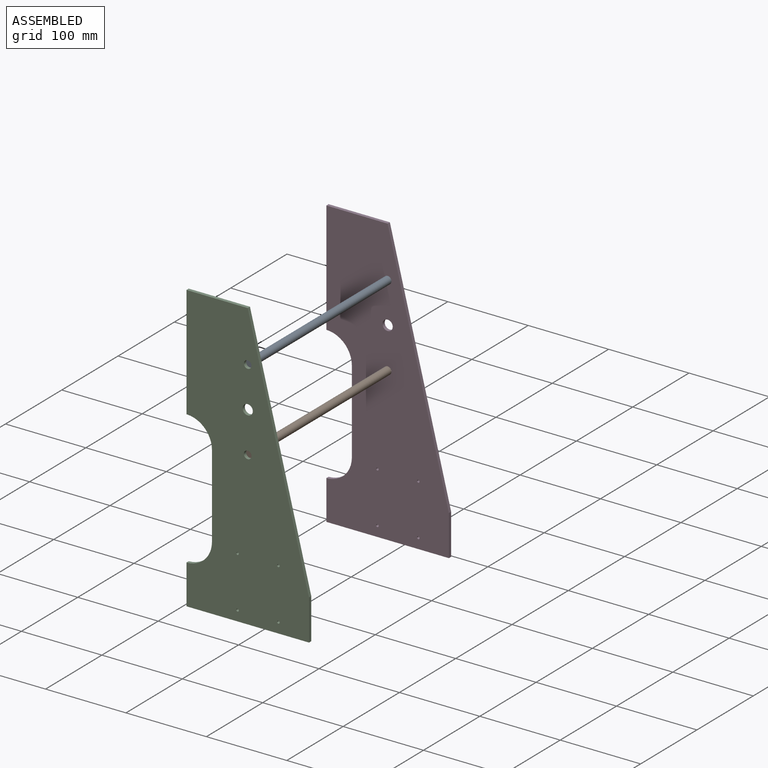
[diagram: assembled view]
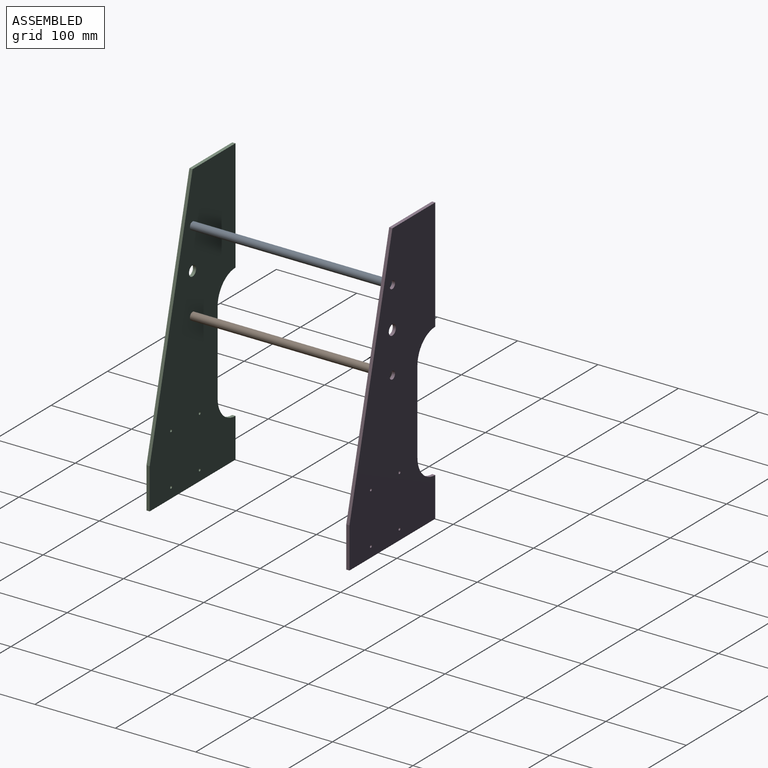
[diagram: assembled view, second angle]
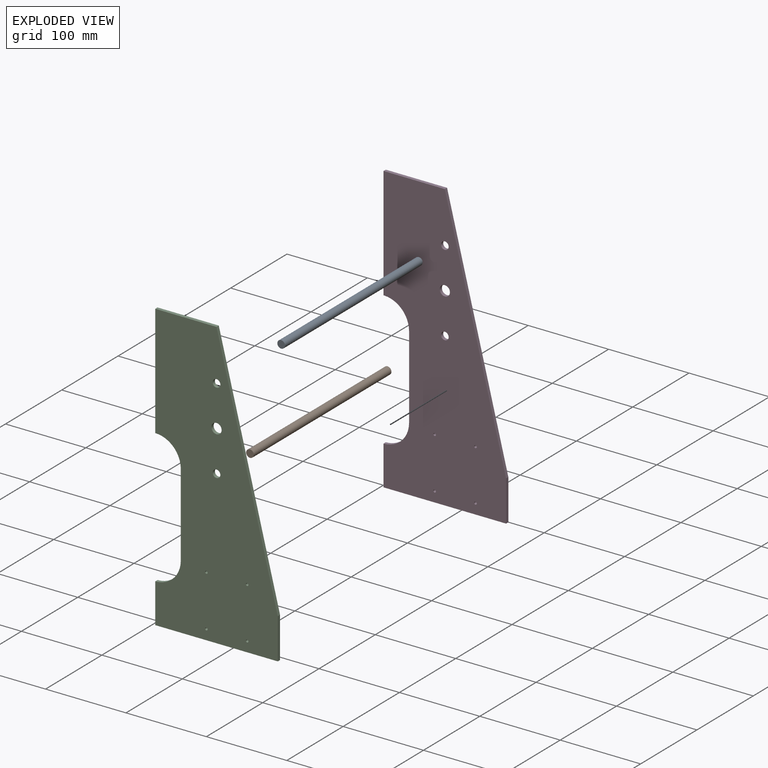
[diagram: exploded view]
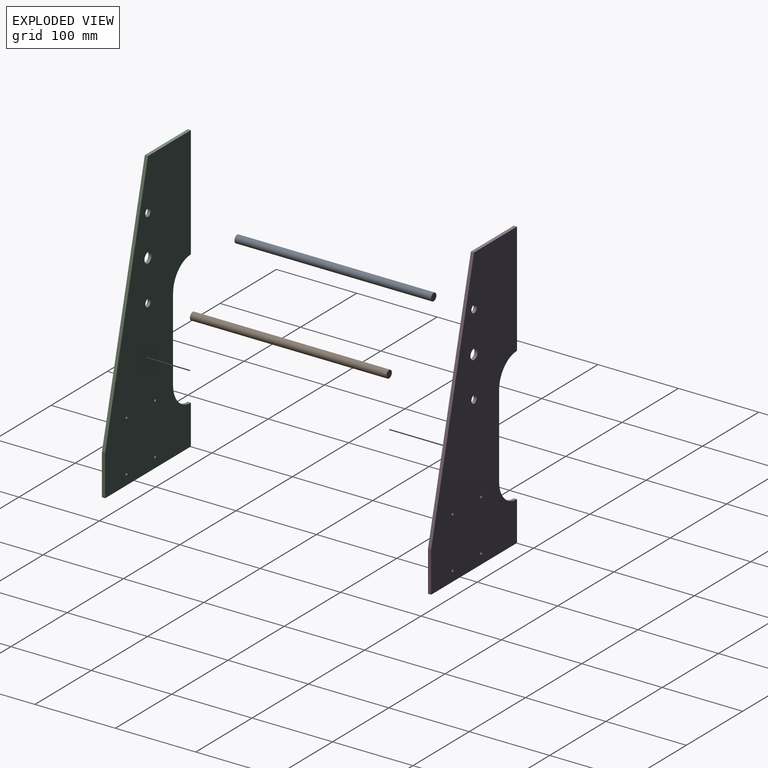
[diagram: exploded view, second angle]
ASSEMBLY  parts=4 mates=3
PART A: 3 faces, bbox 9.5x9.5x244.5 mm
  f0: cylinder r=4.76mm len=244.48mm, axis (0,0,-1), area 7315.6mm2, adj f1,f2
  f1: plane 9.53x9.53mm, normal (0,0,1), area 71.3mm2, adj f0
  f2: plane 9.53x9.53mm, normal (0,0,-1), area 71.3mm2, adj f0
PART B: 3 faces, bbox 9.5x9.5x244.5 mm
  f0: cylinder r=4.76mm len=244.48mm, axis (0,0,-1), area 7315.6mm2, adj f1,f2
  f1: plane 9.53x9.53mm, normal (0,0,1), area 71.3mm2, adj f0
  f2: plane 9.53x9.53mm, normal (0,0,-1), area 71.3mm2, adj f0
PART C: 18 faces, bbox 152.4x4x355.6 mm
  f0: plane 304.8x76.2mm, normal (0.97,0,0.24), area 1256.7mm2, adj f1,f8,f9,f10
  f1: plane 76.2x4mm, normal (0,0,1), area 304.8mm2, adj f0,f2,f9,f10
  f2: plane 139.7x4mm, normal (-1,0,0), area 558.8mm2, adj f1,f3,f9,f10
  f3: cylinder r=31.75mm len=31.75mm, axis (0,-1,0), area 199.5mm2, adj f2,f4,f9,f10
  f4: plane 103.19x4mm, normal (-1,0,0), area 412.7mm2, adj f3,f5,f9,f10
  f5: cylinder r=31.75mm len=31.75mm, axis (0,-1,0), area 199.5mm2, adj f4,f6,f9,f10
  f6: plane 49.21x4mm, normal (-1,0,0), area 196.9mm2, adj f5,f7,f9,f10
  f7: plane 152.4x4mm, normal (0,0,-1), area 609.6mm2, adj f6,f8,f9,f10
  f8: plane 50.8x4mm, normal (1,0,0), area 203.2mm2, adj f0,f7,f9,f10
  f9: plane 355.6x152.4mm, normal (0,1,0), area 37420mm2, adj f0,f1,f2,f3,f4,f5,f6,f7
  f10: plane 355.6x152.4mm, normal (0,-1,0), area 37420mm2, adj f0,f1,f2,f3,f4,f5,f6,f7
  f11: cylinder r=1.59mm len=4mm, axis (0,-1,0), area 39.9mm2, adj f9,f10
  f12: cylinder r=1.59mm len=4mm, axis (0,-1,0), area 39.9mm2, adj f9,f10
  f13: cylinder r=1.59mm len=4mm, axis (0,-1,0), area 39.9mm2, adj f9,f10
  f14: cylinder r=1.59mm len=4mm, axis (0,-1,0), area 39.9mm2, adj f9,f10
  f15: cylinder r=4.76mm len=9.53mm, axis (0,-1,0), area 119.7mm2, adj f9,f10
  f16: cylinder r=4.76mm len=9.53mm, axis (0,-1,0), area 119.7mm2, adj f9,f10
  f17: cylinder r=6.35mm len=12.7mm, axis (0,-1,0), area 159.6mm2, adj f9,f10
PART D: 18 faces, bbox 152.4x4x355.6 mm
  f0: plane 304.8x76.2mm, normal (0.97,0,0.24), area 1256.7mm2, adj f1,f8,f9,f10
  f1: plane 76.2x4mm, normal (0,0,1), area 304.8mm2, adj f0,f2,f9,f10
  f2: plane 139.7x4mm, normal (-1,0,0), area 558.8mm2, adj f1,f3,f9,f10
  f3: cylinder r=31.75mm len=31.75mm, axis (0,-1,0), area 199.5mm2, adj f2,f4,f9,f10
  f4: plane 103.19x4mm, normal (-1,0,0), area 412.7mm2, adj f3,f5,f9,f10
  f5: cylinder r=31.75mm len=31.75mm, axis (0,-1,0), area 199.5mm2, adj f4,f6,f9,f10
  f6: plane 49.21x4mm, normal (-1,0,0), area 196.9mm2, adj f5,f7,f9,f10
  f7: plane 152.4x4mm, normal (0,0,-1), area 609.6mm2, adj f6,f8,f9,f10
  f8: plane 50.8x4mm, normal (1,0,0), area 203.2mm2, adj f0,f7,f9,f10
  f9: plane 355.6x152.4mm, normal (0,1,0), area 37420mm2, adj f0,f1,f2,f3,f4,f5,f6,f7
  f10: plane 355.6x152.4mm, normal (0,-1,0), area 37420mm2, adj f0,f1,f2,f3,f4,f5,f6,f7
  f11: cylinder r=1.59mm len=4mm, axis (0,-1,0), area 39.9mm2, adj f9,f10
  f12: cylinder r=1.59mm len=4mm, axis (0,-1,0), area 39.9mm2, adj f9,f10
  f13: cylinder r=1.59mm len=4mm, axis (0,-1,0), area 39.9mm2, adj f9,f10
  f14: cylinder r=1.59mm len=4mm, axis (0,-1,0), area 39.9mm2, adj f9,f10
  f15: cylinder r=4.76mm len=9.53mm, axis (0,-1,0), area 119.7mm2, adj f9,f10
  f16: cylinder r=4.76mm len=9.53mm, axis (0,-1,0), area 119.7mm2, adj f9,f10
  f17: cylinder r=6.35mm len=12.7mm, axis (0,-1,0), area 159.6mm2, adj f9,f10
PLACE A rot(axis=(1,0,0),90deg) t=(293.9,82,412.66)mm
PLACE B rot(axis=(0,-0.71,-0.71),180deg) t=(500.47,-162.48,311.06)mm
PLACE C rot(axis=(0,1,0),0deg) t=(136.71,-166.48,196.89)mm
PLACE D t=(387.92,82,196.89)mm fixed
MATE parallel C.f16 <-> A.f0  axis (0,1,0) through (387.92,-162.48,412.66)mm
MATE parallel D.f16 <-> A.f0  axis (0,-1,0) through (387.92,82,412.66)mm
MATE parallel B.f0 <-> D.f15  axis (0,-1,0) through (387.92,82,311.06)mm
